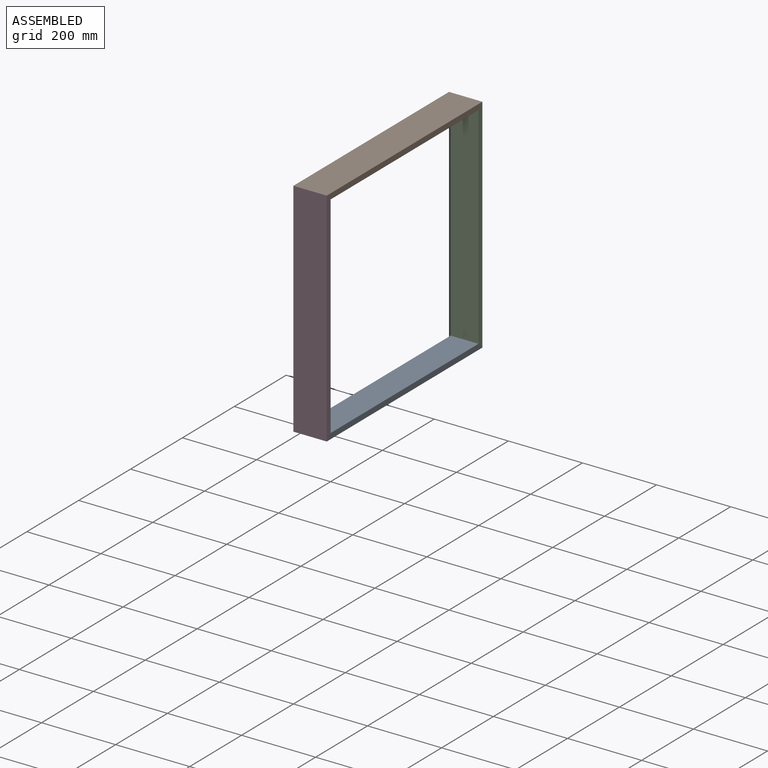
[diagram: assembled view]
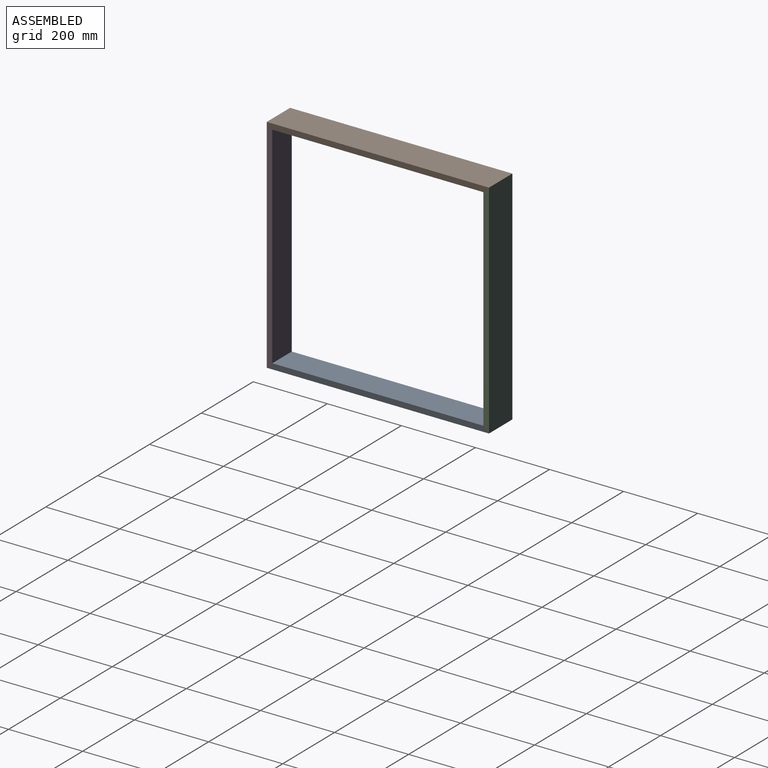
[diagram: assembled view, second angle]
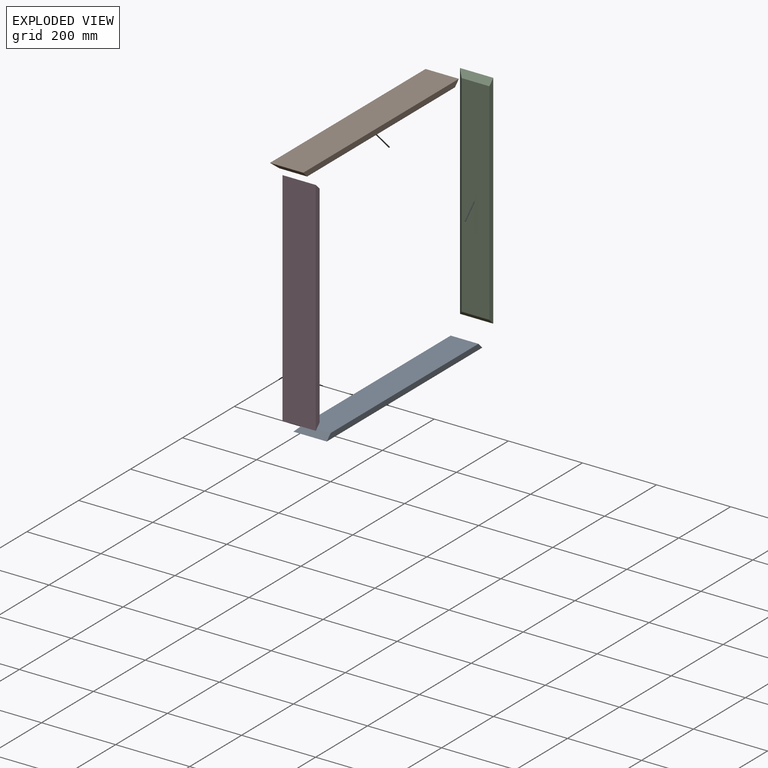
[diagram: exploded view]
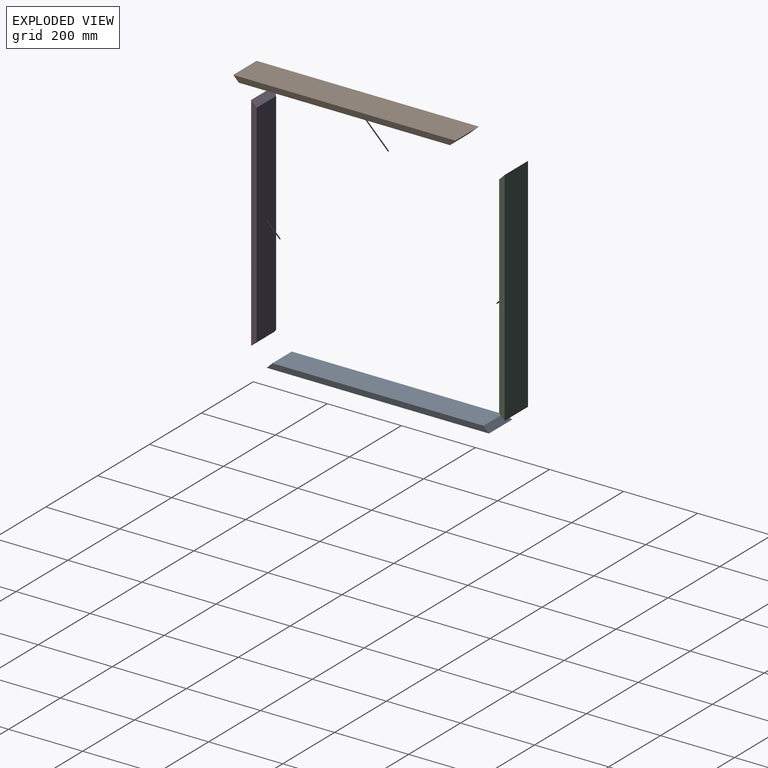
[diagram: exploded view, second angle]
ASSEMBLY  parts=4 mates=3
PART A: 6 faces, bbox 90x600x15 mm
  f0: plane 90x15mm, normal (0,-0.71,0.71), area 1750.1mm2, adj f1,f3,f4,f5
  f1: plane 600x90mm, normal (0,0,-1), area 54000mm2, adj f0,f2,f4,f5
  f2: plane 90x15mm, normal (0,0.71,0.71), area 1750.1mm2, adj f1,f3,f4,f5
  f3: plane 570x75mm, normal (0,0,1), area 42750mm2, adj f0,f2,f4,f5
  f4: plane 600x15mm, normal (-1,0,0), area 8775mm2, adj f0,f1,f2,f3
  f5: plane 600x15mm, normal (0.71,0,0.71), area 12409.7mm2, adj f0,f1,f2,f3
PART B: same geometry as A
PART C: same geometry as A
PART D: same geometry as A
PLACE A rot(axis=(0,0,1),180deg) t=(90,300,-600)mm
PLACE B rot(axis=(0,-1,0),180deg) t=(90,300,0)mm
PLACE C rot(axis=(0,-0.71,0.71),180deg) t=(90,600,-300)mm
PLACE D rot(axis=(0,0.71,0.71),180deg) t=(90,0,-300)mm
MATE fastened C.f2 <-> A.f0  axis (0,-0.71,-0.71) through (48.64,592.73,-592.73)mm
MATE fastened A.f2 <-> D.f0  axis (0,-0.71,0.71) through (48.64,7.27,-592.73)mm
MATE fastened C.f0 <-> B.f2  axis (0,-0.71,0.71) through (48.64,592.73,-7.27)mm
